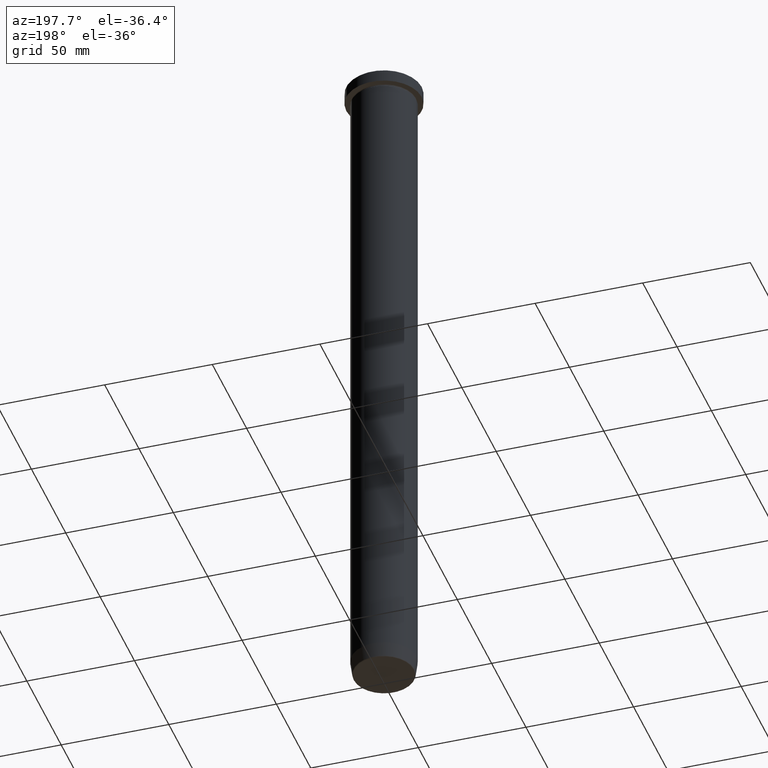
[diagram: clean part render]
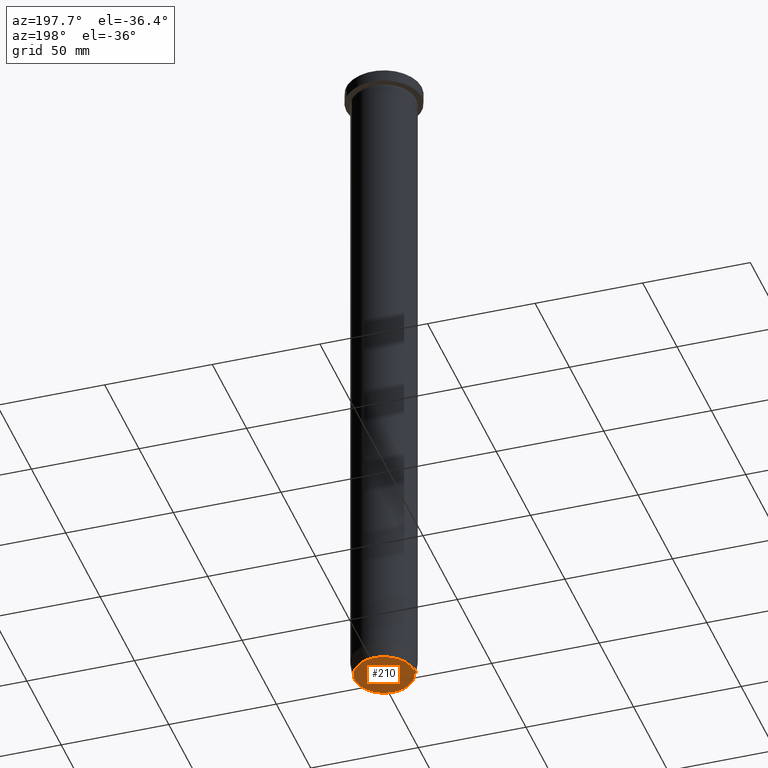
[diagram: same view with one face highlighted and labeled with its STEP entity id]
A machine part, auxiliary view. The second image highlights one B-rep face of the part: STEP entity #210.
In plain terms, the highlighted planar face has unit normal (0, -0, 1).
Its self-contained STEP definition (entity closure, byte-faithful):
#10 = CIRCLE ( 'NONE', #355, 13.58157078817513508 ) ;
#29 = CARTESIAN_POINT ( 'NONE',  ( -13.58157078817513508, 1.693580934830242487E-15, -319.9999999999999432 ) ) ;
#49 = CARTESIAN_POINT ( 'NONE',  ( 0.000000000000000000, 2.939152317953646711E-14, -319.9999999999999432 ) ) ;
#87 = CIRCLE ( 'NONE', #319, 13.58157078817513508 ) ;
#90 = EDGE_CURVE ( 'NONE', #442, #293, #87, .T. ) ;
#94 = FACE_OUTER_BOUND ( 'NONE', #258, .T. ) ;
#119 = DIRECTION ( 'NONE',  ( 1.000000000000000000, 0.000000000000000000, 0.000000000000000000 ) ) ;
#154 = DIRECTION ( 'NONE',  ( 0.000000000000000000, 0.000000000000000000, -1.000000000000000000 ) ) ;
#210 = ADVANCED_FACE ( 'NONE', ( #94 ), #284, .F. ) ;
#225 = DIRECTION ( 'NONE',  ( 0.000000000000000000, 0.000000000000000000, -1.000000000000000000 ) ) ;
#230 = CARTESIAN_POINT ( 'NONE',  ( 0.000000000000000000, 0.000000000000000000, -319.9999999999999432 ) ) ;
#258 = EDGE_LOOP ( 'NONE', ( #441, #588 ) ) ;
#279 = DIRECTION ( 'NONE',  ( 1.000000000000000000, 0.000000000000000000, 0.000000000000000000 ) ) ;
#284 = PLANE ( 'NONE',  #367 ) ;
#293 = VERTEX_POINT ( 'NONE', #29 ) ;
#319 = AXIS2_PLACEMENT_3D ( 'NONE', #230, #225, #279 ) ;
#330 = DIRECTION ( 'NONE',  ( 0.000000000000000000, -0.000000000000000000, 1.000000000000000000 ) ) ;
#355 = AXIS2_PLACEMENT_3D ( 'NONE', #434, #154, #119 ) ;
#361 = EDGE_CURVE ( 'NONE', #293, #442, #10, .T. ) ;
#367 = AXIS2_PLACEMENT_3D ( 'NONE', #49, #330, #414 ) ;
#414 = DIRECTION ( 'NONE',  ( 1.000000000000000000, 0.000000000000000000, 0.000000000000000000 ) ) ;
#434 = CARTESIAN_POINT ( 'NONE',  ( 0.000000000000000000, 0.000000000000000000, -319.9999999999999432 ) ) ;
#441 = ORIENTED_EDGE ( 'NONE', *, *, #90, .T. ) ;
#442 = VERTEX_POINT ( 'NONE', #559 ) ;
#559 = CARTESIAN_POINT ( 'NONE',  ( 13.58157078817513508, 0.000000000000000000, -319.9999999999999432 ) ) ;
#588 = ORIENTED_EDGE ( 'NONE', *, *, #361, .T. ) ;